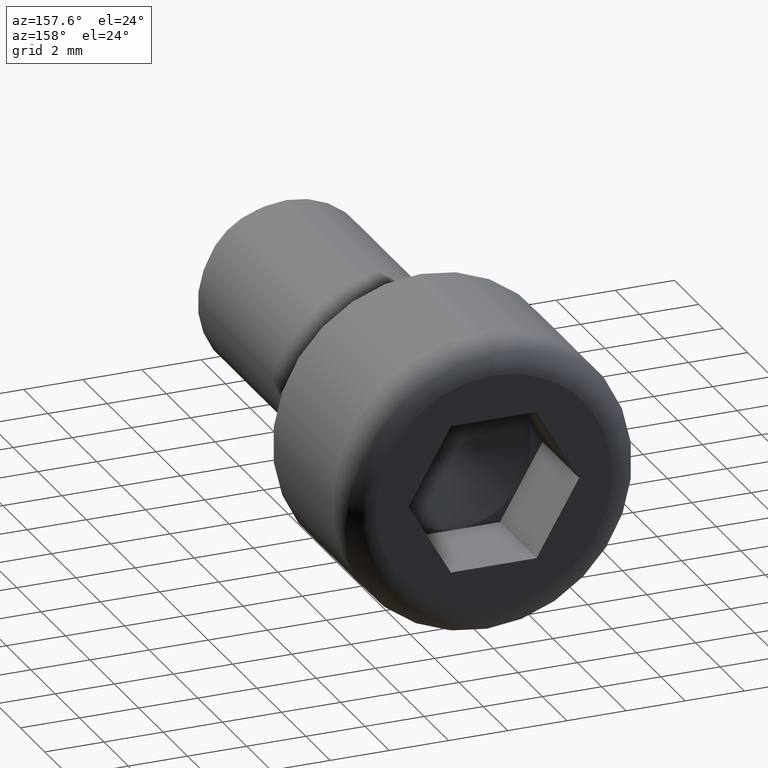
[diagram: clean part render]
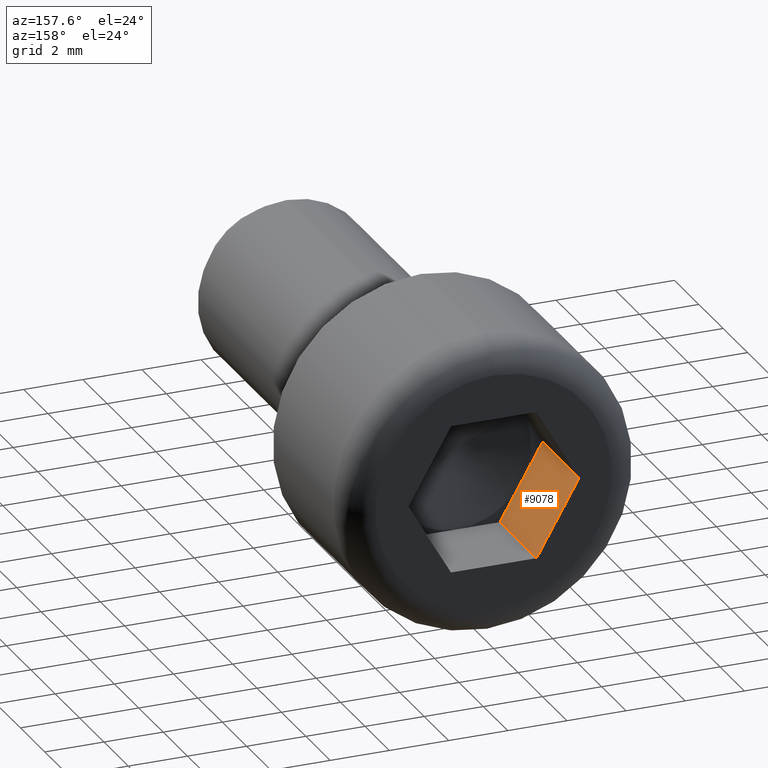
[diagram: same view with one face highlighted and labeled with its STEP entity id]
A machine part, auxiliary view. The second image highlights one B-rep face of the part: STEP entity #9078.
In plain terms, the highlighted planar face has unit normal (-0.866, 0, -0.5).
Its self-contained STEP definition (entity closure, byte-faithful):
#364 = DIRECTION ( 'NONE',  ( -0.0000000000000000000, 1.000000000000000000, -0.0000000000000000000 ) ) ;
#856 = DIRECTION ( 'NONE',  ( -0.5000000000000000000, 0.0000000000000000000, 0.8660254037844386000 ) ) ;
#1008 = DIRECTION ( 'NONE',  ( -0.8660254037844387100, 0.0000000000000000000, -0.5000000000000001100 ) ) ;
#1587 = EDGE_CURVE ( 'NONE', #5457, #5843, #12194, .T. ) ;
#2285 = LINE ( 'NONE', #12050, #8738 ) ;
#2331 = VECTOR ( 'NONE', #856, 1000.000000000000200 ) ;
#2352 = DIRECTION ( 'NONE',  ( -0.5000000000000000000, 0.0000000000000000000, 0.8660254037844386000 ) ) ;
#2462 = FACE_OUTER_BOUND ( 'NONE', #4973, .T. ) ;
#2604 = VECTOR ( 'NONE', #12188, 1000.000000000000200 ) ;
#2791 = ORIENTED_EDGE ( 'NONE', *, *, #5476, .T. ) ;
#3093 = CARTESIAN_POINT ( 'NONE',  ( -2.886751345948129500, 6.000000000000000000, 4.091644267660314100E-016 ) ) ;
#3716 = DIRECTION ( 'NONE',  ( -0.5000000000000000000, 0.0000000000000000000, 0.8660254037844386000 ) ) ;
#4073 = AXIS2_PLACEMENT_3D ( 'NONE', #10642, #1008, #3716 ) ;
#4559 = LINE ( 'NONE', #11247, #15027 ) ;
#4671 = ORIENTED_EDGE ( 'NONE', *, *, #13755, .F. ) ;
#4973 = EDGE_LOOP ( 'NONE', ( #13947, #4671, #14308, #13944, #2791 ) ) ;
#5443 = CARTESIAN_POINT ( 'NONE',  ( -1.443375672974064800, 3.000000000000000000, -2.500000000000000000 ) ) ;
#5457 = VERTEX_POINT ( 'NONE', #6193 ) ;
#5476 = EDGE_CURVE ( 'NONE', #5457, #12968, #9180, .T. ) ;
#5843 = VERTEX_POINT ( 'NONE', #17263 ) ;
#6193 = CARTESIAN_POINT ( 'NONE',  ( -1.443375672974064800, 3.000000000000000000, -2.500000000000000000 ) ) ;
#6211 = EDGE_CURVE ( 'NONE', #12968, #8433, #2285, .T. ) ;
#8433 = VERTEX_POINT ( 'NONE', #3093 ) ;
#8738 = VECTOR ( 'NONE', #2352, 1000.000000000000200 ) ;
#9078 = ADVANCED_FACE ( 'NONE', ( #2462 ), #14752, .F. ) ;
#9180 = LINE ( 'NONE', #14466, #12374 ) ;
#10412 = DIRECTION ( 'NONE',  ( -0.0000000000000000000, 1.000000000000000000, -0.0000000000000000000 ) ) ;
#10642 = CARTESIAN_POINT ( 'NONE',  ( -1.443375672974064800, 3.000000000000000000, -2.500000000000000000 ) ) ;
#11247 = CARTESIAN_POINT ( 'NONE',  ( -2.886751345948129500, 3.000000000000000000, 4.091644267660314100E-016 ) ) ;
#11668 = VERTEX_POINT ( 'NONE', #16014 ) ;
#12050 = CARTESIAN_POINT ( 'NONE',  ( -1.443375672974064800, 6.000000000000000000, -2.500000000000000000 ) ) ;
#12188 = DIRECTION ( 'NONE',  ( -0.5000000000000000000, 0.0000000000000000000, 0.8660254037844386000 ) ) ;
#12194 = LINE ( 'NONE', #17318, #2331 ) ;
#12374 = VECTOR ( 'NONE', #10412, 1000.000000000000000 ) ;
#12968 = VERTEX_POINT ( 'NONE', #13225 ) ;
#13225 = CARTESIAN_POINT ( 'NONE',  ( -1.443375672974064800, 6.000000000000000000, -2.500000000000000000 ) ) ;
#13755 = EDGE_CURVE ( 'NONE', #11668, #8433, #4559, .T. ) ;
#13944 = ORIENTED_EDGE ( 'NONE', *, *, #1587, .F. ) ;
#13947 = ORIENTED_EDGE ( 'NONE', *, *, #6211, .T. ) ;
#14308 = ORIENTED_EDGE ( 'NONE', *, *, #17596, .F. ) ;
#14466 = CARTESIAN_POINT ( 'NONE',  ( -1.443375672974064800, 3.000000000000000000, -2.500000000000000000 ) ) ;
#14752 = PLANE ( 'NONE',  #4073 ) ;
#15027 = VECTOR ( 'NONE', #364, 1000.000000000000000 ) ;
#16014 = CARTESIAN_POINT ( 'NONE',  ( -2.886751345948129500, 3.000000000000000000, 4.091644267660314100E-016 ) ) ;
#16519 = LINE ( 'NONE', #5443, #2604 ) ;
#17263 = CARTESIAN_POINT ( 'NONE',  ( -2.165063509461097300, 2.999999999999999600, -1.250000000000000200 ) ) ;
#17318 = CARTESIAN_POINT ( 'NONE',  ( -1.443375672974064800, 3.000000000000000000, -2.500000000000000000 ) ) ;
#17596 = EDGE_CURVE ( 'NONE', #5843, #11668, #16519, .T. ) ;